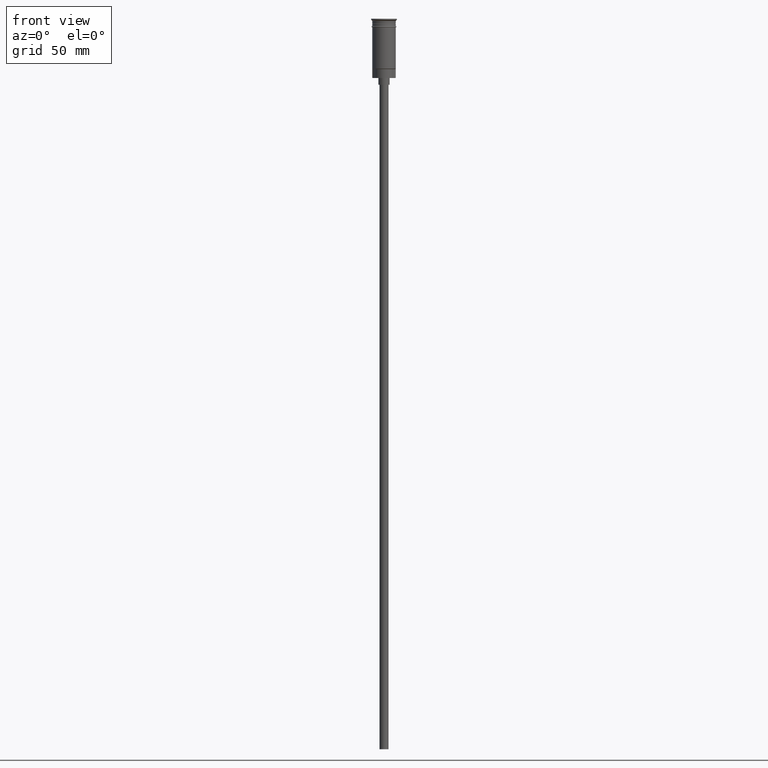
[diagram: clean part render]
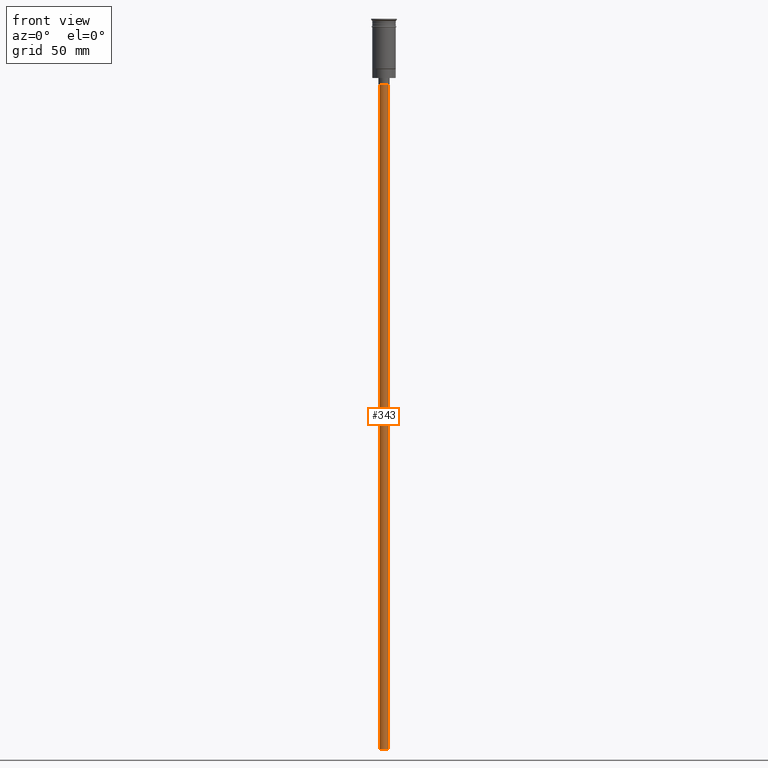
[diagram: same view with one face highlighted and labeled with its STEP entity id]
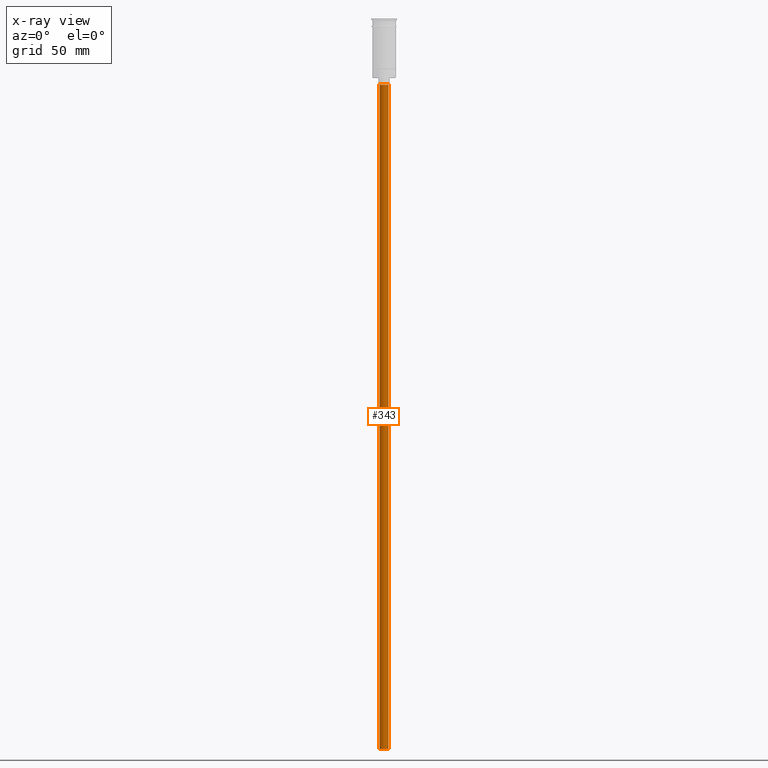
[diagram: x-ray of the same camera — body ghosted, the highlighted face saturated]
A machine part, front view. The second image highlights one B-rep face of the part: STEP entity #343.
The next image is the same camera in x-ray: the body ghosted, the highlighted face saturated — about 0% of this face is hidden behind the body in this view.
In plain terms, the highlighted cylindrical surface (edge-blend (fillet) strip) has radius 2 mm, axis along (-0, -0, 1).
Its self-contained STEP definition (entity closure, byte-faithful):
#65 = DIRECTION ( 'NONE',  ( 0.000000000000000000, 0.000000000000000000, -1.000000000000000000 ) ) ;
#142 = LINE ( 'NONE', #1343, #1354 ) ;
#161 = ORIENTED_EDGE ( 'NONE', *, *, #395, .T. ) ;
#201 = DIRECTION ( 'NONE',  ( 0.000000000000000000, 0.000000000000000000, -1.000000000000000000 ) ) ;
#203 = LINE ( 'NONE', #333, #763 ) ;
#274 = AXIS2_PLACEMENT_3D ( 'NONE', #1555, #65, #1562 ) ;
#276 = AXIS2_PLACEMENT_3D ( 'NONE', #933, #201, #1570 ) ;
#290 = DIRECTION ( 'NONE',  ( -0.000000000000000000, -0.000000000000000000, 1.000000000000000000 ) ) ;
#293 = VERTEX_POINT ( 'NONE', #1172 ) ;
#333 = CARTESIAN_POINT ( 'NONE',  ( 2.000000000000000000, 0.000000000000000000, -326.5000000000000000 ) ) ;
#343 = ADVANCED_FACE ( 'NONE', ( #532 ), #1518, .T. ) ;
#395 = EDGE_CURVE ( 'NONE', #1451, #1330, #203, .T. ) ;
#417 = ORIENTED_EDGE ( 'NONE', *, *, #1030, .T. ) ;
#447 = DIRECTION ( 'NONE',  ( -0.000000000000000000, -0.000000000000000000, 1.000000000000000000 ) ) ;
#488 = DIRECTION ( 'NONE',  ( -0.000000000000000000, -0.000000000000000000, 1.000000000000000000 ) ) ;
#519 = CARTESIAN_POINT ( 'NONE',  ( 2.000000000000000000, 0.000000000000000000, -326.5000000000000000 ) ) ;
#532 = FACE_OUTER_BOUND ( 'NONE', #1577, .T. ) ;
#535 = CIRCLE ( 'NONE', #276, 2.000000000000000000 ) ;
#558 = EDGE_CURVE ( 'NONE', #293, #764, #142, .T. ) ;
#579 = AXIS2_PLACEMENT_3D ( 'NONE', #804, #290, #1420 ) ;
#654 = EDGE_CURVE ( 'NONE', #1451, #293, #664, .T. ) ;
#664 = CIRCLE ( 'NONE', #274, 2.000000000000000000 ) ;
#704 = ORIENTED_EDGE ( 'NONE', *, *, #558, .F. ) ;
#763 = VECTOR ( 'NONE', #447, 1000.000000000000000 ) ;
#764 = VERTEX_POINT ( 'NONE', #1068 ) ;
#804 = CARTESIAN_POINT ( 'NONE',  ( 0.000000000000000000, 0.000000000000000000, -326.5000000000000000 ) ) ;
#868 = CARTESIAN_POINT ( 'NONE',  ( 2.000000000000000000, 0.000000000000000000, -29.50000000000000000 ) ) ;
#933 = CARTESIAN_POINT ( 'NONE',  ( 0.000000000000000000, 0.000000000000000000, -29.50000000000000000 ) ) ;
#1030 = EDGE_CURVE ( 'NONE', #1330, #764, #535, .T. ) ;
#1068 = CARTESIAN_POINT ( 'NONE',  ( -2.000000000000000000, 2.449293598294706414E-16, -29.50000000000000000 ) ) ;
#1170 = ORIENTED_EDGE ( 'NONE', *, *, #654, .F. ) ;
#1172 = CARTESIAN_POINT ( 'NONE',  ( -2.000000000000000000, 2.449293598294706414E-16, -326.5000000000000000 ) ) ;
#1330 = VERTEX_POINT ( 'NONE', #868 ) ;
#1343 = CARTESIAN_POINT ( 'NONE',  ( -2.000000000000000000, 2.449293598294706414E-16, -326.5000000000000000 ) ) ;
#1354 = VECTOR ( 'NONE', #488, 1000.000000000000000 ) ;
#1420 = DIRECTION ( 'NONE',  ( 1.000000000000000000, 0.000000000000000000, 0.000000000000000000 ) ) ;
#1451 = VERTEX_POINT ( 'NONE', #519 ) ;
#1518 = CYLINDRICAL_SURFACE ( 'NONE', #579, 2.000000000000000000 ) ;
#1555 = CARTESIAN_POINT ( 'NONE',  ( 0.000000000000000000, 0.000000000000000000, -326.5000000000000000 ) ) ;
#1562 = DIRECTION ( 'NONE',  ( -1.000000000000000000, 0.000000000000000000, 0.000000000000000000 ) ) ;
#1570 = DIRECTION ( 'NONE',  ( -1.000000000000000000, 0.000000000000000000, 0.000000000000000000 ) ) ;
#1577 = EDGE_LOOP ( 'NONE', ( #704, #1170, #161, #417 ) ) ;